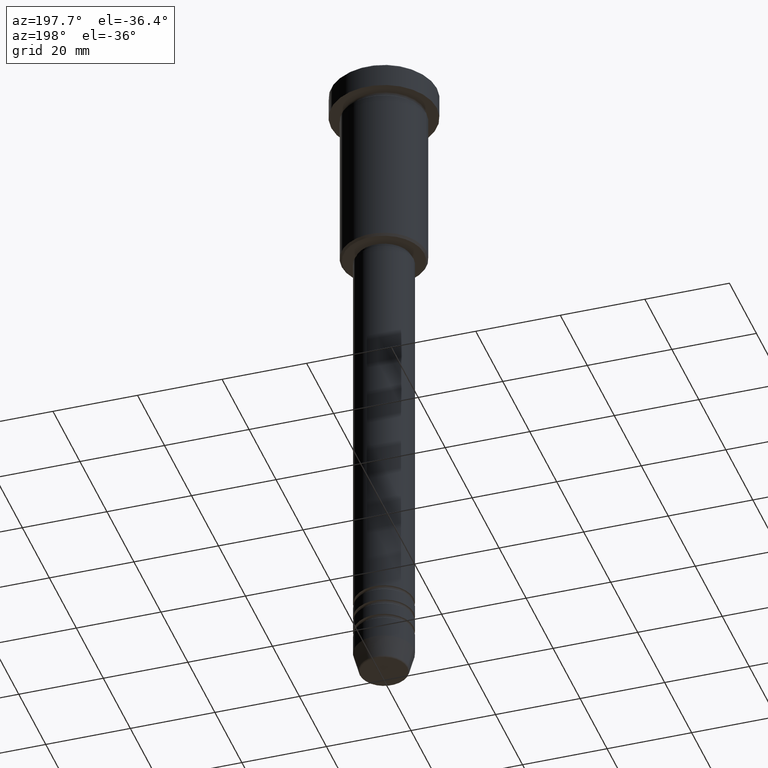
[diagram: clean part render]
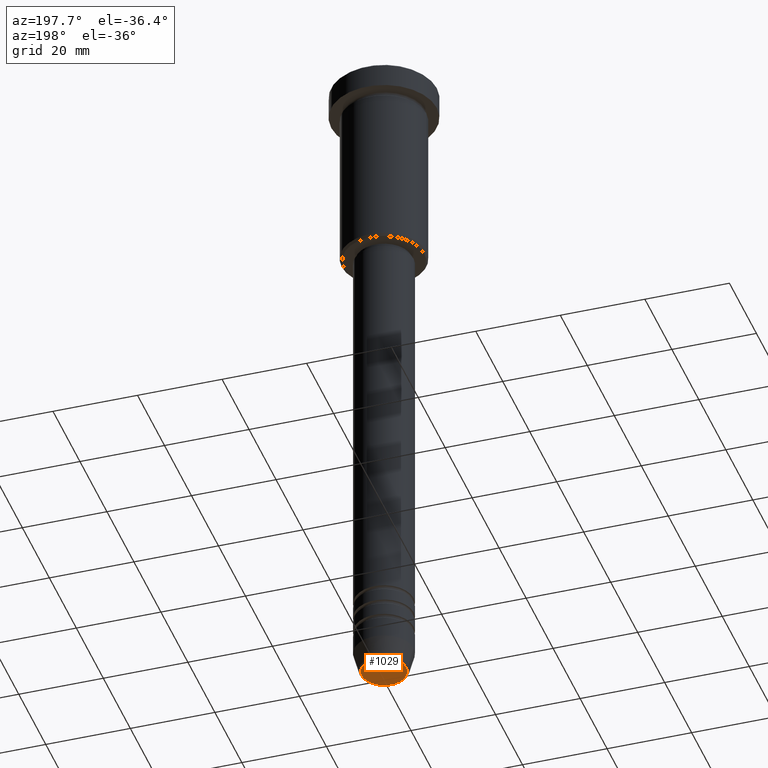
[diagram: same view with one face highlighted and labeled with its STEP entity id]
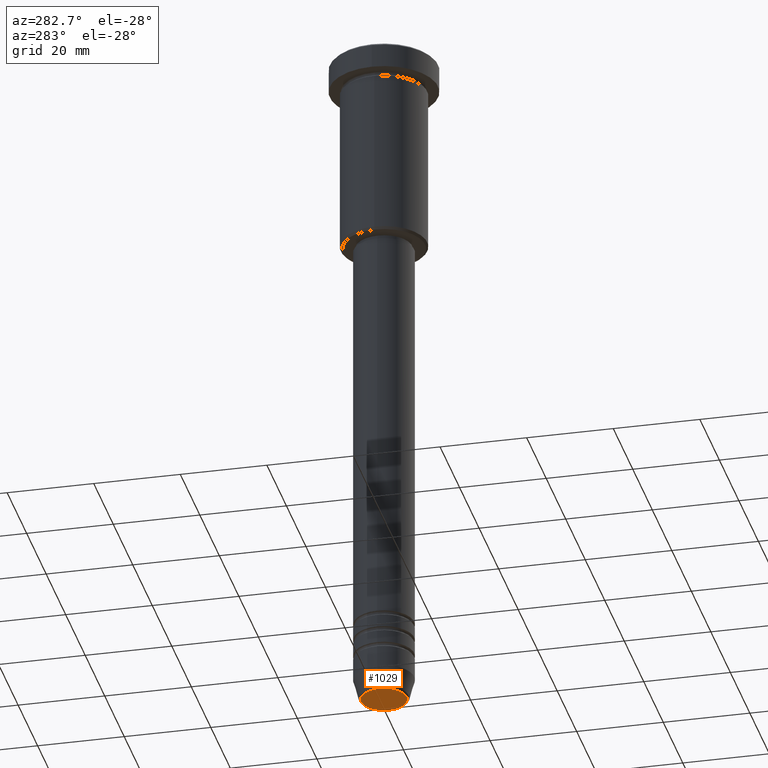
[diagram: same view with one face highlighted and labeled with its STEP entity id]
A machine part, auxiliary view. The second image highlights one B-rep face of the part: STEP entity #1029.
A second angle (auxiliary view) of the same face is appended — the face is thin or edge-on in the first view.
In plain terms, the highlighted planar face has unit normal (0, -0, 1).
Its self-contained STEP definition (entity closure, byte-faithful):
#51 = CIRCLE ( 'NONE', #428, 5.276590543854905668 ) ;
#80 = DIRECTION ( 'NONE',  ( 0.000000000000000000, 0.000000000000000000, -1.000000000000000000 ) ) ;
#129 = FACE_OUTER_BOUND ( 'NONE', #517, .T. ) ;
#147 = DIRECTION ( 'NONE',  ( 0.000000000000000000, -0.000000000000000000, 1.000000000000000000 ) ) ;
#176 = CARTESIAN_POINT ( 'NONE',  ( 0.000000000000000000, 0.000000000000000000, -161.0000000000000284 ) ) ;
#178 = DIRECTION ( 'NONE',  ( 0.000000000000000000, 0.000000000000000000, -1.000000000000000000 ) ) ;
#225 = ORIENTED_EDGE ( 'NONE', *, *, #830, .T. ) ;
#288 = EDGE_CURVE ( 'NONE', #972, #515, #51, .T. ) ;
#410 = CIRCLE ( 'NONE', #467, 5.276590543854905668 ) ;
#428 = AXIS2_PLACEMENT_3D ( 'NONE', #521, #178, #805 ) ;
#452 = CARTESIAN_POINT ( 'NONE',  ( 5.276590543854905668, 0.000000000000000000, -161.0000000000000284 ) ) ;
#467 = AXIS2_PLACEMENT_3D ( 'NONE', #176, #80, #1172 ) ;
#515 = VERTEX_POINT ( 'NONE', #645 ) ;
#517 = EDGE_LOOP ( 'NONE', ( #677, #225 ) ) ;
#521 = CARTESIAN_POINT ( 'NONE',  ( 0.000000000000000000, 0.000000000000000000, -161.0000000000000284 ) ) ;
#645 = CARTESIAN_POINT ( 'NONE',  ( -5.276590543854905668, 6.757689212787771832E-16, -161.0000000000000284 ) ) ;
#677 = ORIENTED_EDGE ( 'NONE', *, *, #288, .T. ) ;
#805 = DIRECTION ( 'NONE',  ( 1.000000000000000000, 0.000000000000000000, 0.000000000000000000 ) ) ;
#830 = EDGE_CURVE ( 'NONE', #515, #972, #410, .T. ) ;
#854 = CARTESIAN_POINT ( 'NONE',  ( 0.000000000000000000, 0.000000000000000000, -161.0000000000000284 ) ) ;
#869 = DIRECTION ( 'NONE',  ( 1.000000000000000000, 0.000000000000000000, 0.000000000000000000 ) ) ;
#962 = PLANE ( 'NONE',  #1007 ) ;
#972 = VERTEX_POINT ( 'NONE', #452 ) ;
#1007 = AXIS2_PLACEMENT_3D ( 'NONE', #854, #147, #869 ) ;
#1029 = ADVANCED_FACE ( 'NONE', ( #129 ), #962, .F. ) ;
#1172 = DIRECTION ( 'NONE',  ( 1.000000000000000000, 0.000000000000000000, 0.000000000000000000 ) ) ;